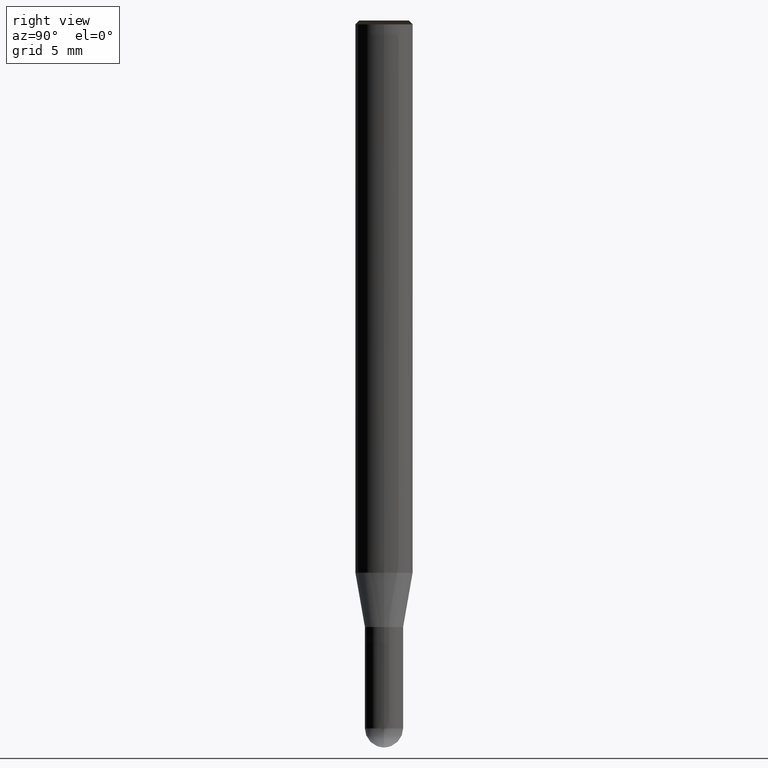
[diagram: clean part render]
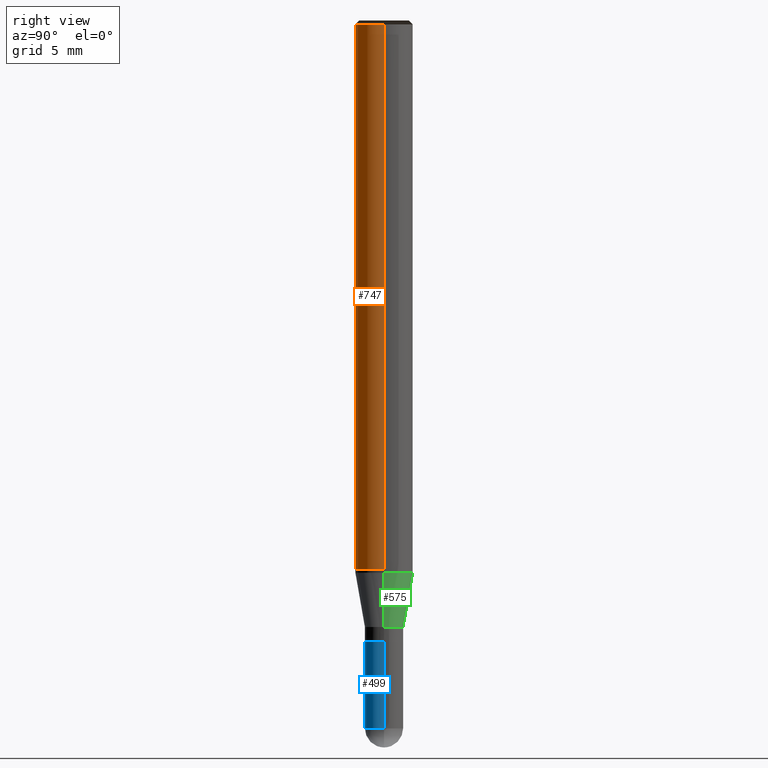
[diagram: same view with three faces highlighted in distinct colors, each labeled with its STEP entity id]
A machine part, right view with three faces highlighted in distinct colors.
Their STEP definitions:

[orange] entity #747 — the highlighted face is a freeform B-spline surface patch.
#376=CARTESIAN_POINT('',(1.5,0.0,0.0));
#380=CARTESIAN_POINT('',(-1.5,0.0,0.0));
#381=CARTESIAN_POINT('',(1.5,0.0,28.5));
#385=CARTESIAN_POINT('',(-1.5,0.0,28.5));
#398=CARTESIAN_POINT('',(-1.5,-1.5,0.0));
#399=CARTESIAN_POINT('',(0.0,-1.5,0.0));
#400=CARTESIAN_POINT('',(1.5,-1.5,0.0));
#401=CARTESIAN_POINT('',(-1.5,-1.5,28.5));
#402=CARTESIAN_POINT('',(0.0,-1.5,28.5));
#403=CARTESIAN_POINT('',(1.5,-1.5,28.5));
#728=(
BOUNDED_SURFACE()
B_SPLINE_SURFACE(1,2,(
(#380,#398,#399,#400,#376),
(#385,#401,#402,#403,#381)
), .UNSPECIFIED.,.F.,.F.,.F.)
B_SPLINE_SURFACE_WITH_KNOTS((2,2),(3,2,3),(
0.0,1.0),(
0.0,0.5,1.0), .UNSPECIFIED.)
GEOMETRIC_REPRESENTATION_ITEM()
RATIONAL_B_SPLINE_SURFACE(((1.0,0.707106781187,1.0,0.707106781187,1.0),
(1.0,0.707106781187,1.0,0.707106781187,1.0)
))
REPRESENTATION_ITEM('')
SURFACE()
);
#729=(
BOUNDED_CURVE()
B_SPLINE_CURVE(2,(#376,#400,#399,#398,#380),.UNSPECIFIED.,.F.,.F.)
B_SPLINE_CURVE_WITH_KNOTS((3,2,3),
(0.0,0.5,1.0),.UNSPECIFIED.)
CURVE()
GEOMETRIC_REPRESENTATION_ITEM()
RATIONAL_B_SPLINE_CURVE((1.0,0.707106781187,1.0,0.707106781187,1.0))
REPRESENTATION_ITEM('')
);
#730=(
BOUNDED_CURVE()
B_SPLINE_CURVE(1,(#380,#385),.UNSPECIFIED.,.F.,.F.)
B_SPLINE_CURVE_WITH_KNOTS((2,2),
(0.0,1.0),.UNSPECIFIED.)
CURVE()
GEOMETRIC_REPRESENTATION_ITEM()
RATIONAL_B_SPLINE_CURVE((1.0,1.0))
REPRESENTATION_ITEM('')
);
#731=(
BOUNDED_CURVE()
B_SPLINE_CURVE(2,(#385,#401,#402,#403,#381),.UNSPECIFIED.,.F.,.F.)
B_SPLINE_CURVE_WITH_KNOTS((3,2,3),
(0.0,0.5,1.0),.UNSPECIFIED.)
CURVE()
GEOMETRIC_REPRESENTATION_ITEM()
RATIONAL_B_SPLINE_CURVE((1.0,0.707106781187,1.0,0.707106781187,1.0))
REPRESENTATION_ITEM('')
);
#732=(
BOUNDED_CURVE()
B_SPLINE_CURVE(1,(#381,#376),.UNSPECIFIED.,.F.,.F.)
B_SPLINE_CURVE_WITH_KNOTS((2,2),
(0.0,1.0),.UNSPECIFIED.)
CURVE()
GEOMETRIC_REPRESENTATION_ITEM()
RATIONAL_B_SPLINE_CURVE((1.0,1.0))
REPRESENTATION_ITEM('')
);
#733=VERTEX_POINT('',#376);
#734=VERTEX_POINT('',#380);
#735=VERTEX_POINT('',#381);
#736=VERTEX_POINT('',#385);
#737=EDGE_CURVE('',#733,#734,#729,.T.);
#738=EDGE_CURVE('',#734,#736,#730,.T.);
#739=EDGE_CURVE('',#736,#735,#731,.T.);
#740=EDGE_CURVE('',#735,#733,#732,.T.);
#741=ORIENTED_EDGE('',*,*,#737,.T.);
#742=ORIENTED_EDGE('',*,*,#738,.T.);
#743=ORIENTED_EDGE('',*,*,#739,.T.);
#744=ORIENTED_EDGE('',*,*,#740,.T.);
#745=EDGE_LOOP('',(#741,#742,#743,#744));
#746=FACE_OUTER_BOUND('',#745,.T.);
#747=ADVANCED_FACE('',(#746),#728,.T.);

[blue] entity #499 — the highlighted face is a freeform B-spline surface patch.
#346=CARTESIAN_POINT('',(1.0,0.0,-8.3));
#350=CARTESIAN_POINT('',(-1.0,0.0,-8.3));
#351=CARTESIAN_POINT('',(1.0,0.0,-3.7875));
#355=CARTESIAN_POINT('',(-1.0,0.0,-3.7875));
#360=CARTESIAN_POINT('',(-1.0,-1.0,-8.3));
#361=CARTESIAN_POINT('',(0.0,-1.0,-8.3));
#362=CARTESIAN_POINT('',(1.0,-1.0,-8.3));
#363=CARTESIAN_POINT('',(-1.0,-1.0,-3.7875));
#364=CARTESIAN_POINT('',(0.0,-1.0,-3.7875));
#365=CARTESIAN_POINT('',(1.0,-1.0,-3.7875));
#480=(
BOUNDED_SURFACE()
B_SPLINE_SURFACE(1,2,(
(#350,#360,#361,#362,#346),
(#355,#363,#364,#365,#351)
), .UNSPECIFIED.,.F.,.F.,.F.)
B_SPLINE_SURFACE_WITH_KNOTS((2,2),(3,2,3),(
0.0,1.0),(
0.0,0.5,1.0), .UNSPECIFIED.)
GEOMETRIC_REPRESENTATION_ITEM()
RATIONAL_B_SPLINE_SURFACE(((1.0,0.707106781187,1.0,0.707106781187,1.0),
(1.0,0.707106781187,1.0,0.707106781187,1.0)
))
REPRESENTATION_ITEM('')
SURFACE()
);
#481=(
BOUNDED_CURVE()
B_SPLINE_CURVE(2,(#346,#362,#361,#360,#350),.UNSPECIFIED.,.F.,.F.)
B_SPLINE_CURVE_WITH_KNOTS((3,2,3),
(0.0,0.5,1.0),.UNSPECIFIED.)
CURVE()
GEOMETRIC_REPRESENTATION_ITEM()
RATIONAL_B_SPLINE_CURVE((1.0,0.707106781187,1.0,0.707106781187,1.0))
REPRESENTATION_ITEM('')
);
#482=(
BOUNDED_CURVE()
B_SPLINE_CURVE(1,(#350,#355),.UNSPECIFIED.,.F.,.F.)
B_SPLINE_CURVE_WITH_KNOTS((2,2),
(0.0,1.0),.UNSPECIFIED.)
CURVE()
GEOMETRIC_REPRESENTATION_ITEM()
RATIONAL_B_SPLINE_CURVE((1.0,1.0))
REPRESENTATION_ITEM('')
);
#483=(
BOUNDED_CURVE()
B_SPLINE_CURVE(2,(#355,#363,#364,#365,#351),.UNSPECIFIED.,.F.,.F.)
B_SPLINE_CURVE_WITH_KNOTS((3,2,3),
(0.0,0.5,1.0),.UNSPECIFIED.)
CURVE()
GEOMETRIC_REPRESENTATION_ITEM()
RATIONAL_B_SPLINE_CURVE((1.0,0.707106781187,1.0,0.707106781187,1.0))
REPRESENTATION_ITEM('')
);
#484=(
BOUNDED_CURVE()
B_SPLINE_CURVE(1,(#351,#346),.UNSPECIFIED.,.F.,.F.)
B_SPLINE_CURVE_WITH_KNOTS((2,2),
(0.0,1.0),.UNSPECIFIED.)
CURVE()
GEOMETRIC_REPRESENTATION_ITEM()
RATIONAL_B_SPLINE_CURVE((1.0,1.0))
REPRESENTATION_ITEM('')
);
#485=VERTEX_POINT('',#346);
#486=VERTEX_POINT('',#350);
#487=VERTEX_POINT('',#351);
#488=VERTEX_POINT('',#355);
#489=EDGE_CURVE('',#485,#486,#481,.T.);
#490=EDGE_CURVE('',#486,#488,#482,.T.);
#491=EDGE_CURVE('',#488,#487,#483,.T.);
#492=EDGE_CURVE('',#487,#485,#484,.T.);
#493=ORIENTED_EDGE('',*,*,#489,.T.);
#494=ORIENTED_EDGE('',*,*,#490,.T.);
#495=ORIENTED_EDGE('',*,*,#491,.T.);
#496=ORIENTED_EDGE('',*,*,#492,.T.);
#497=EDGE_LOOP('',(#493,#494,#495,#496));
#498=FACE_OUTER_BOUND('',#497,.T.);
#499=ADVANCED_FACE('',(#498),#480,.T.);

[green] entity #575 — the highlighted face is a freeform B-spline surface patch.
#366=CARTESIAN_POINT('',(1.0,0.0,-3.0));
#367=CARTESIAN_POINT('',(1.0,1.0,-3.0));
#368=CARTESIAN_POINT('',(0.0,1.0,-3.0));
#369=CARTESIAN_POINT('',(-1.0,1.0,-3.0));
#370=CARTESIAN_POINT('',(-1.0,0.0,-3.0));
#371=CARTESIAN_POINT('',(1.5,0.0,-0.164359090191));
#372=CARTESIAN_POINT('',(1.5,1.5,-0.164359090191));
#373=CARTESIAN_POINT('',(0.0,1.5,-0.164359090191));
#374=CARTESIAN_POINT('',(-1.5,1.5,-0.164359090191));
#375=CARTESIAN_POINT('',(-1.5,0.0,-0.164359090191));
#556=(
BOUNDED_SURFACE()
B_SPLINE_SURFACE(1,2,(
(#366,#367,#368,#369,#370),
(#371,#372,#373,#374,#375)
), .UNSPECIFIED.,.F.,.F.,.F.)
B_SPLINE_SURFACE_WITH_KNOTS((2,2),(3,2,3),(
0.0,1.0),(
0.0,0.5,1.0), .UNSPECIFIED.)
GEOMETRIC_REPRESENTATION_ITEM()
RATIONAL_B_SPLINE_SURFACE(((1.0,0.707106781187,1.0,0.707106781187,1.0),
(1.0,0.707106781187,1.0,0.707106781187,1.0)
))
REPRESENTATION_ITEM('')
SURFACE()
);
#557=(
BOUNDED_CURVE()
B_SPLINE_CURVE(2,(#370,#369,#368,#367,#366),.UNSPECIFIED.,.F.,.F.)
B_SPLINE_CURVE_WITH_KNOTS((3,2,3),
(0.0,0.5,1.0),.UNSPECIFIED.)
CURVE()
GEOMETRIC_REPRESENTATION_ITEM()
RATIONAL_B_SPLINE_CURVE((1.0,0.707106781187,1.0,0.707106781187,1.0))
REPRESENTATION_ITEM('')
);
#558=(
BOUNDED_CURVE()
B_SPLINE_CURVE(1,(#366,#371),.UNSPECIFIED.,.F.,.F.)
B_SPLINE_CURVE_WITH_KNOTS((2,2),
(0.0,1.0),.UNSPECIFIED.)
CURVE()
GEOMETRIC_REPRESENTATION_ITEM()
RATIONAL_B_SPLINE_CURVE((1.0,1.0))
REPRESENTATION_ITEM('')
);
#559=(
BOUNDED_CURVE()
B_SPLINE_CURVE(2,(#371,#372,#373,#374,#375),.UNSPECIFIED.,.F.,.F.)
B_SPLINE_CURVE_WITH_KNOTS((3,2,3),
(0.0,0.5,1.0),.UNSPECIFIED.)
CURVE()
GEOMETRIC_REPRESENTATION_ITEM()
RATIONAL_B_SPLINE_CURVE((1.0,0.707106781187,1.0,0.707106781187,1.0))
REPRESENTATION_ITEM('')
);
#560=(
BOUNDED_CURVE()
B_SPLINE_CURVE(1,(#375,#370),.UNSPECIFIED.,.F.,.F.)
B_SPLINE_CURVE_WITH_KNOTS((2,2),
(0.0,1.0),.UNSPECIFIED.)
CURVE()
GEOMETRIC_REPRESENTATION_ITEM()
RATIONAL_B_SPLINE_CURVE((1.0,1.0))
REPRESENTATION_ITEM('')
);
#561=VERTEX_POINT('',#366);
#562=VERTEX_POINT('',#370);
#563=VERTEX_POINT('',#371);
#564=VERTEX_POINT('',#375);
#565=EDGE_CURVE('',#562,#561,#557,.T.);
#566=EDGE_CURVE('',#561,#563,#558,.T.);
#567=EDGE_CURVE('',#563,#564,#559,.T.);
#568=EDGE_CURVE('',#564,#562,#560,.T.);
#569=ORIENTED_EDGE('',*,*,#565,.T.);
#570=ORIENTED_EDGE('',*,*,#566,.T.);
#571=ORIENTED_EDGE('',*,*,#567,.T.);
#572=ORIENTED_EDGE('',*,*,#568,.T.);
#573=EDGE_LOOP('',(#569,#570,#571,#572));
#574=FACE_OUTER_BOUND('',#573,.T.);
#575=ADVANCED_FACE('',(#574),#556,.T.);